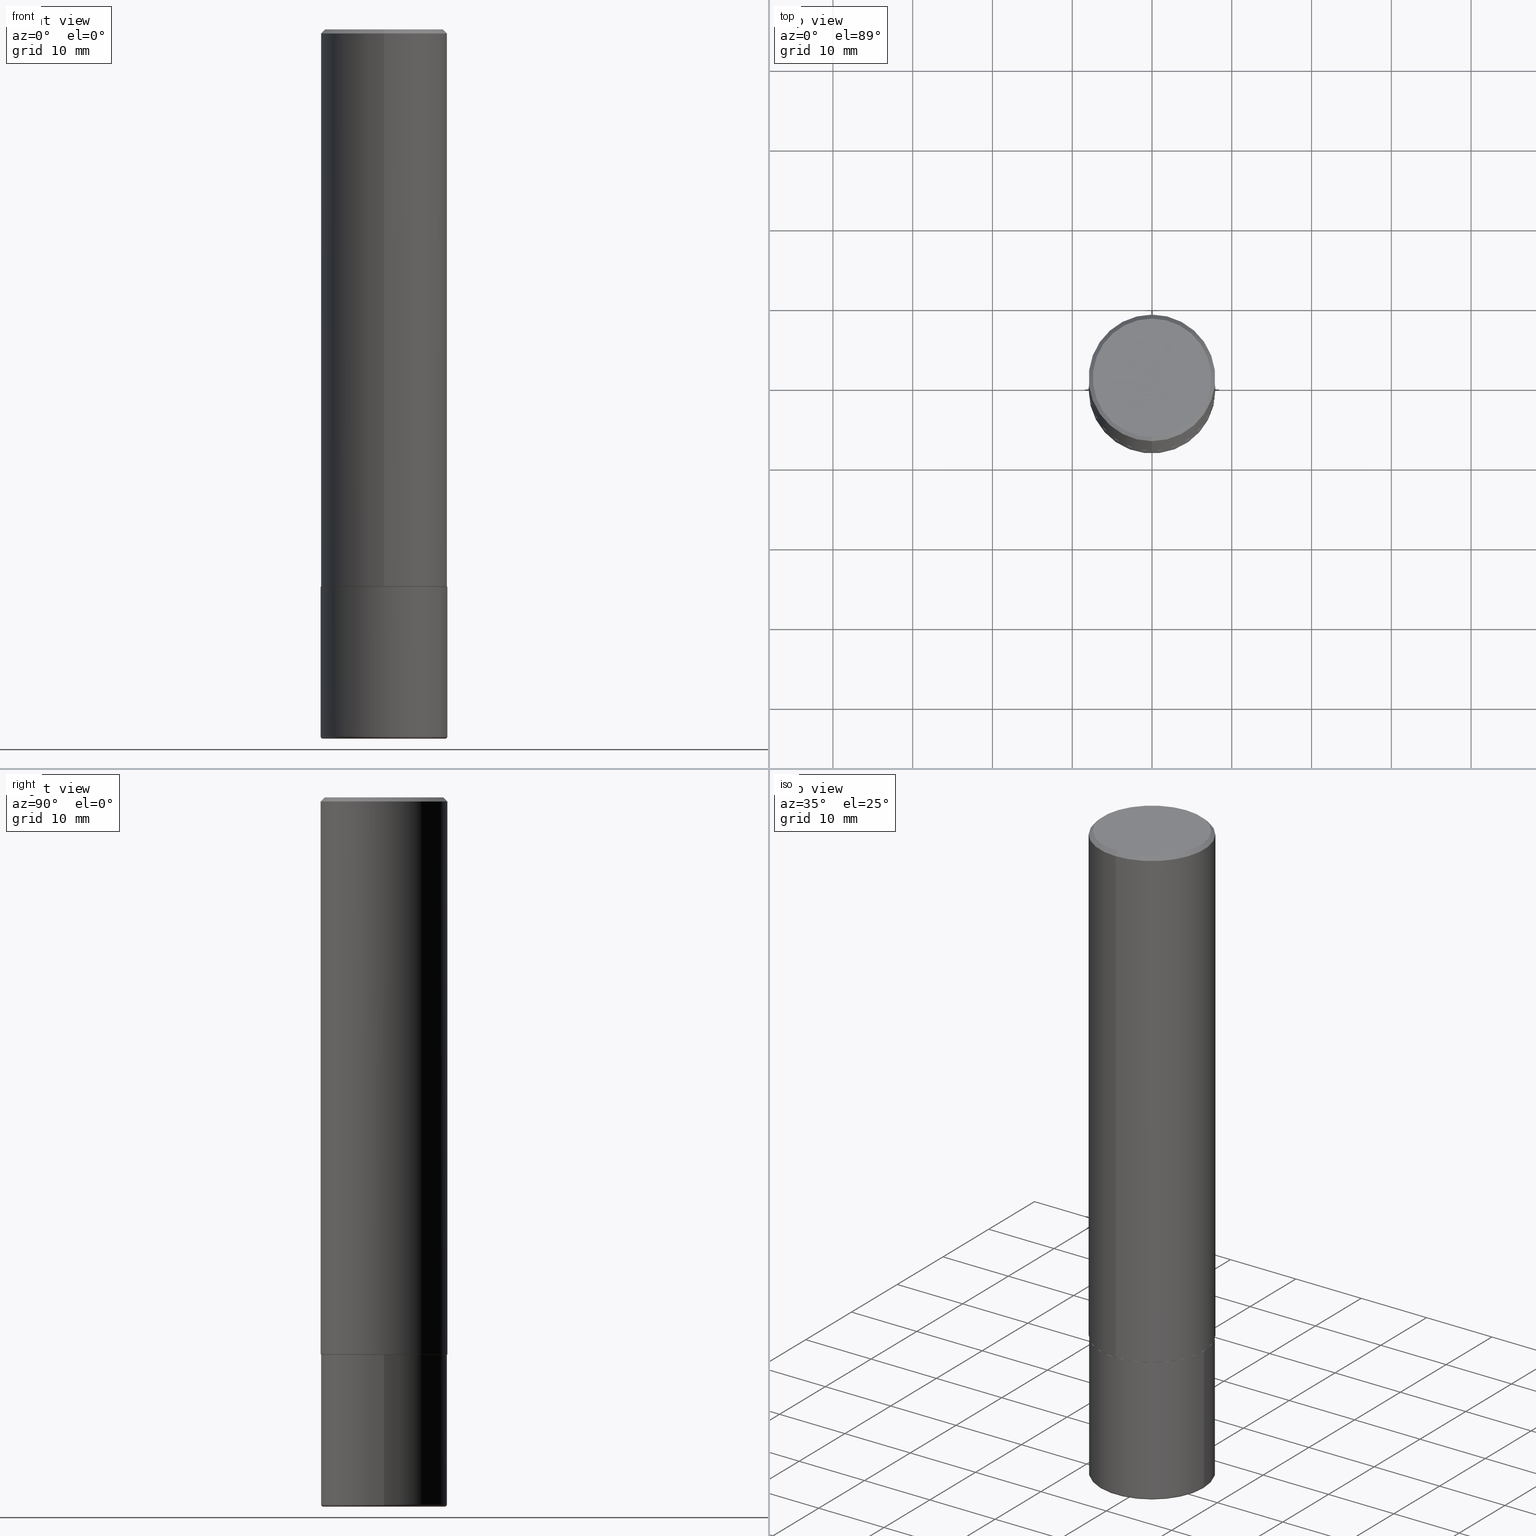
[diagram: canonical four-view strip — front | top / right | iso, engineering-drawing reading convention]
A machine part, canonical four-view strip (front | top / right | iso — engineering-drawing reading convention). The complete STEP part file that produces these views, byte-faithful:
ISO-10303-21;
HEADER;
FILE_DESCRIPTION (( 'STEP AP203' ),
    '1' );
FILE_NAME ('38849.STEP',
    '2024-03-03T16:54:18',
    ( '' ),
    ( '' ),
    'SwSTEP 2.0',
    'SolidWorks 2023',
    '' );
FILE_SCHEMA (( 'CONFIG_CONTROL_DESIGN' ));
ENDSEC;

DATA;
#1 = DIRECTION ( 'NONE',  ( -1.000000000000000000, 6.982962677686265922E-15, -4.876176775795935793E-29 ) ) ;
#2 = ORIENTED_EDGE ( 'NONE', *, *, #255, .F. ) ;
#3 = EDGE_LOOP ( 'NONE', ( #354, #387, #40, #236 ) ) ;
#4 = AXIS2_PLACEMENT_3D ( 'NONE', #25, #20, #144 ) ;
#5 = EDGE_CURVE ( 'NONE', #340, #206, #324, .T. ) ;
#6 = EDGE_LOOP ( 'NONE', ( #283, #205, #413, #298 ) ) ;
#7 = EDGE_LOOP ( 'NONE', ( #189, #127 ) ) ;
#8 = ADVANCED_FACE ( 'NONE', ( #42 ), #159, .T. ) ;
#9 = AXIS2_PLACEMENT_3D ( 'NONE', #278, #123, #218 ) ;
#10 = EDGE_LOOP ( 'NONE', ( #232, #363 ) ) ;
#11 = CARTESIAN_POINT ( 'NONE',  ( 0.3125000000000000000, -2.182175836776958347E-15, 1.523805242436230075E-29 ) ) ;
#12 = DIRECTION ( 'NONE',  ( -2.444797333483953649E-29, 3.492442925969092226E-15, 1.000000000000000000 ) ) ;
#13 = COORDINATED_UNIVERSAL_TIME_OFFSET ( 5, 0, .BEHIND. ) ;
#14 = PERSON_AND_ORGANIZATION_ROLE ( 'creator' ) ;
#15 = EDGE_CURVE ( 'NONE', #374, #193, #53, .T. ) ;
#16 = PERSON_AND_ORGANIZATION ( #329, #162 ) ;
#17 = ORIENTED_EDGE ( 'NONE', *, *, #152, .T. ) ;
#18 = AXIS2_PLACEMENT_3D ( 'NONE', #312, #26, #175 ) ;
#19 = APPROVAL_PERSON_ORGANIZATION ( #111, #399, #214 ) ;
#20 = DIRECTION ( 'NONE',  ( -2.444797333483953649E-29, 3.492442925969092226E-15, 1.000000000000000000 ) ) ;
#21 = APPLICATION_PROTOCOL_DEFINITION ( 'international standard', 'config_control_design', 1994, #101 ) ;
#22 = CARTESIAN_POINT ( 'NONE',  ( 0.000000000000000000, 0.000000000000000000, 0.000000000000000000 ) ) ;
#23 = DIRECTION ( 'NONE',  ( -2.444797333483953649E-29, 3.492442925969092226E-15, 1.000000000000000000 ) ) ;
#24 = DIRECTION ( 'NONE',  ( 2.444797333483953649E-29, -3.492442925969092226E-15, -1.000000000000000000 ) ) ;
#25 = CARTESIAN_POINT ( 'NONE',  ( 6.723192667080871976E-29, -9.604218046415003522E-15, -2.750000000000000000 ) ) ;
#26 = DIRECTION ( 'NONE',  ( 2.444797333483953089E-29, -3.492442925969092620E-15, -1.000000000000000000 ) ) ;
#27 = CONICAL_SURFACE ( 'NONE', #75, 0.3124999999999998890, 0.7853981633974469467 ) ;
#28 = AXIS2_PLACEMENT_3D ( 'NONE', #251, #187, #1 ) ;
#29 = EDGE_CURVE ( 'NONE', #164, #306, #370, .T. ) ;
#30 = AXIS2_PLACEMENT_3D ( 'NONE', #404, #51, #368 ) ;
#31 = ORIENTED_EDGE ( 'NONE', *, *, #152, .F. ) ;
#32 = ADVANCED_FACE ( 'NONE', ( #410 ), #141, .T. ) ;
#33 = ORIENTED_EDGE ( 'NONE', *, *, #57, .T. ) ;
#34 = EDGE_CURVE ( 'NONE', #65, #398, #59, .T. ) ;
#35 = AXIS2_PLACEMENT_3D ( 'NONE', #254, #288, #400 ) ;
#36 = AXIS2_PLACEMENT_3D ( 'NONE', #393, #225, #70 ) ;
#37 = EDGE_LOOP ( 'NONE', ( #92, #403, #373, #302 ) ) ;
#38 = CALENDAR_DATE ( 2024, 3, 3 ) ;
#39 = CC_DESIGN_PERSON_AND_ORGANIZATION_ASSIGNMENT ( #293, #229, ( #290 ) ) ;
#40 = ORIENTED_EDGE ( 'NONE', *, *, #5, .F. ) ;
#41 = CARTESIAN_POINT ( 'NONE',  ( 2.216893335571580419E-15, 0.3114999999999903957, -2.750000000000000888 ) ) ;
#42 = FACE_OUTER_BOUND ( 'NONE', #337, .T. ) ;
#43 = AXIS2_PLACEMENT_3D ( 'NONE', #378, #24, #180 ) ;
#44 = ORIENTED_EDGE ( 'NONE', *, *, #135, .F. ) ;
#45 = DATE_AND_TIME ( #338, #221 ) ;
#46 = CARTESIAN_POINT ( 'NONE',  ( -0.3024999999999999911, -1.003587809688827154E-14, -3.489999999999999769 ) ) ;
#47 = DIRECTION ( 'NONE',  ( -2.445468806185136597E-29, 3.491481338843145583E-15, 1.000000000000000000 ) ) ;
#48 = ORIENTED_EDGE ( 'NONE', *, *, #29, .T. ) ;
#49 = DIRECTION ( 'NONE',  ( -2.444797333483953649E-29, 3.492442925969092226E-15, 1.000000000000000000 ) ) ;
#50 = LINE ( 'NONE', #169, #107 ) ;
#51 = DIRECTION ( 'NONE',  ( -2.444797333483953649E-29, 3.492442925969092226E-15, 1.000000000000000000 ) ) ;
#52 = DIRECTION ( 'NONE',  ( 5.024295867789263036E-15, 0.7071067811867189912, 0.7071067811863760433 ) ) ;
#53 = CIRCLE ( 'NONE', #131, 0.3024999999999999911 ) ;
#54 = ORIENTED_EDGE ( 'NONE', *, *, #388, .T. ) ;
#55 = AXIS2_PLACEMENT_3D ( 'NONE', #112, #49, #369 ) ;
#56 = CARTESIAN_POINT ( 'NONE',  ( 0.3125000000000000000, -1.178374951859560978E-14, -2.750000000000000000 ) ) ;
#57 = EDGE_CURVE ( 'NONE', #130, #164, #50, .T. ) ;
#58 = DIRECTION ( 'NONE',  ( 1.000000000000000000, -6.982962677686267499E-15, 0.000000000000000000 ) ) ;
#59 = CIRCLE ( 'NONE', #386, 0.3125000000000000000 ) ;
#60 = AXIS2_PLACEMENT_3D ( 'NONE', #402, #105, #256 ) ;
#61 = ORIENTED_EDGE ( 'NONE', *, *, #198, .F. ) ;
#62 = ORIENTED_EDGE ( 'NONE', *, *, #388, .F. ) ;
#63 = CIRCLE ( 'NONE', #35, 0.2924999999999997602 ) ;
#64 = CIRCLE ( 'NONE', #36, 0.2924999999999997602 ) ;
#65 = VERTEX_POINT ( 'NONE', #56 ) ;
#66 = DIRECTION ( 'NONE',  ( 6.982962677686265133E-15, 1.000000000000000000, -3.496765431890258103E-15 ) ) ;
#67 = AXIS2_PLACEMENT_3D ( 'NONE', #356, #190, #103 ) ;
#68 = LOCAL_TIME ( 11, 54, 18.00000000000000000, #153 ) ;
#69 = ADVANCED_FACE ( 'NONE', ( #409 ), #384, .T. ) ;
#70 = DIRECTION ( 'NONE',  ( -6.982962677686266711E-15, -1.000000000000000000, 3.492442925969092620E-15 ) ) ;
#71 = VERTEX_POINT ( 'NONE', #389 ) ;
#72 = DIRECTION ( 'NONE',  ( -2.445468806185136597E-29, 3.491481338843145583E-15, 1.000000000000000000 ) ) ;
#73 = DATE_AND_TIME ( #264, #233 ) ;
#74 = CARTESIAN_POINT ( 'NONE',  ( 6.720747869747387921E-29, -9.600725603489034077E-15, -2.749000000000000110 ) ) ;
#75 = AXIS2_PLACEMENT_3D ( 'NONE', #216, #156, #66 ) ;
#76 = ORIENTED_EDGE ( 'NONE', *, *, #168, .T. ) ;
#77 = APPROVAL_STATUS ( 'not_yet_approved' ) ;
#78 = EDGE_CURVE ( 'NONE', #193, #374, #155, .T. ) ;
#79 = DIRECTION ( 'NONE',  ( -6.982962677686265922E-15, -1.000000000000000000, 3.496765431890253764E-15 ) ) ;
#80 = ORIENTED_EDGE ( 'NONE', *, *, #34, .F. ) ;
#81 = DIRECTION ( 'NONE',  ( -6.982962677686265922E-15, -1.000000000000000000, 3.507991003100177457E-15 ) ) ;
#82 = ORIENTED_EDGE ( 'NONE', *, *, #243, .F. ) ;
#83 = DIRECTION ( 'NONE',  ( 1.000000000000000000, -6.982962677686267499E-15, 4.883557194083112901E-29 ) ) ;
#84 = EDGE_LOOP ( 'NONE', ( #82, #328, #114, #62 ) ) ;
#85 = LENGTH_MEASURE_WITH_UNIT ( LENGTH_MEASURE( 0.02539999999999999897 ), #395 );
#86 = DIRECTION ( 'NONE',  ( 1.000000000000000000, -6.982962677686269077E-15, 0.000000000000000000 ) ) ;
#87 = VECTOR ( 'NONE', #133, 39.37007874015748143 ) ;
#88 = VECTOR ( 'NONE', #297, 39.37007874015748143 ) ;
#89 = PRODUCT ( '38849', '38849', '', ( #115 ) ) ;
#90 = PERSON_AND_ORGANIZATION_ROLE ( 'design_supplier' ) ;
#91 = LINE ( 'NONE', #365, #208 ) ;
#92 = ORIENTED_EDGE ( 'NONE', *, *, #57, .F. ) ;
#93 = CC_DESIGN_PERSON_AND_ORGANIZATION_ASSIGNMENT ( #146, #352, ( #361 ) ) ;
#94 = CIRCLE ( 'NONE', #99, 0.3125000000000000000 ) ;
#95 = FACE_OUTER_BOUND ( 'NONE', #84, .T. ) ;
#96 = ADVANCED_FACE ( 'NONE', ( #95 ), #355, .T. ) ;
#97 = CALENDAR_DATE ( 2024, 3, 3 ) ;
#98 = EDGE_LOOP ( 'NONE', ( #31, #401, #359, #48 ) ) ;
#99 = AXIS2_PLACEMENT_3D ( 'NONE', #339, #47, #86 ) ;
#100 = DIMENSIONAL_EXPONENTS ( 1.000000000000000000, 0.000000000000000000, 0.000000000000000000, 0.000000000000000000, 0.000000000000000000, 0.000000000000000000, 0.000000000000000000 ) ;
#101 = APPLICATION_CONTEXT ( 'configuration controlled 3d designs of mechanical parts and assemblies' ) ;
#102 = ORIENTED_EDGE ( 'NONE', *, *, #397, .T. ) ;
#103 = DIRECTION ( 'NONE',  ( 1.000000000000000000, -6.982962677686267499E-15, 4.883557194083112901E-29 ) ) ;
#104 = FACE_OUTER_BOUND ( 'NONE', #10, .T. ) ;
#105 = DIRECTION ( 'NONE',  ( -2.445468806185136597E-29, 3.491481338843145583E-15, 1.000000000000000000 ) ) ;
#106 = EDGE_LOOP ( 'NONE', ( #366, #17, #167, #231 ) ) ;
#107 = VECTOR ( 'NONE', #307, 39.37007874015748143 ) ;
#108 = AXIS2_PLACEMENT_3D ( 'NONE', #22, #300, #276 ) ;
#109 = CARTESIAN_POINT ( 'NONE',  ( -0.3124999999999998890, -9.964823823312263034E-15, -3.489999999999999769 ) ) ;
#110 = CARTESIAN_POINT ( 'NONE',  ( 2.112346210000094260E-15, 0.2924999999999997602, -9.401565542997115154E-16 ) ) ;
#111 = PERSON_AND_ORGANIZATION ( #329, #162 ) ;
#112 = CARTESIAN_POINT ( 'NONE',  ( 6.720747869747387921E-29, -9.600725603489034077E-15, -2.749000000000000110 ) ) ;
#113 = CC_DESIGN_DATE_AND_TIME_ASSIGNMENT ( #45, #269, ( #376 ) ) ;
#114 = ORIENTED_EDGE ( 'NONE', *, *, #287, .T. ) ;
#115 = MECHANICAL_CONTEXT ( 'NONE', #101, 'mechanical' ) ;
#116 = AXIS2_PLACEMENT_3D ( 'NONE', #279, #165, #179 ) ;
#117 = CARTESIAN_POINT ( 'NONE',  ( 6.725039217009124520E-29, -9.601573681818649859E-15, -2.750000000000000000 ) ) ;
#118 = SHAPE_DEFINITION_REPRESENTATION ( #204, #174 ) ;
#119 = CARTESIAN_POINT ( 'NONE',  ( 8.559140821647976968E-29, -1.222018468595100619E-14, -3.499999999999999112 ) ) ;
#120 = CARTESIAN_POINT ( 'NONE',  ( 0.000000000000000000, 0.000000000000000000, 0.000000000000000000 ) ) ;
#121 = AXIS2_PLACEMENT_3D ( 'NONE', #74, #372, #79 ) ;
#122 = CC_DESIGN_APPROVAL ( #412, ( #376 ) ) ;
#123 = DIRECTION ( 'NONE',  ( -6.982962677686266711E-15, -1.000000000000000000, 3.491481338843145583E-15 ) ) ;
#124 = EDGE_CURVE ( 'NONE', #407, #268, #188, .T. ) ;
#125 = MANIFOLD_SOLID_BREP ( 'Body-Move/Copy2[2]', #415 ) ;
#126 = CIRCLE ( 'NONE', #60, 0.3125000000000000000 ) ;
#127 = ORIENTED_EDGE ( 'NONE', *, *, #128, .T. ) ;
#128 = EDGE_CURVE ( 'NONE', #398, #65, #94, .T. ) ;
#129 = EDGE_LOOP ( 'NONE', ( #333, #138, #80, #235 ) ) ;
#130 = VERTEX_POINT ( 'NONE', #382 ) ;
#131 = AXIS2_PLACEMENT_3D ( 'NONE', #119, #349, #182 ) ;
#132 = AXIS2_PLACEMENT_3D ( 'NONE', #154, #228, #58 ) ;
#133 = DIRECTION ( 'NONE',  ( -2.445468806185136877E-29, 3.491481338843145188E-15, 1.000000000000000000 ) ) ;
#134 = ORIENTED_EDGE ( 'NONE', *, *, #184, .T. ) ;
#135 = EDGE_CURVE ( 'NONE', #71, #306, #272, .T. ) ;
#136 = DIRECTION ( 'NONE',  ( -2.444797333483953089E-29, 3.492442925969092620E-15, 1.000000000000000000 ) ) ;
#137 = PERSON_AND_ORGANIZATION ( #329, #162 ) ;
#138 = ORIENTED_EDGE ( 'NONE', *, *, #147, .T. ) ;
#139 = CARTESIAN_POINT ( 'NONE',  ( 4.889594666967924290E-31, -6.984885851938207279E-17, -0.02000000000000006981 ) ) ;
#140 = ADVANCED_FACE ( 'NONE', ( #379 ), #308, .T. ) ;
#141 = CONICAL_SURFACE ( 'NONE', #4, 0.3114999999999999991, 0.7853981633976873100 ) ;
#142 = CC_DESIGN_APPROVAL ( #399, ( #361 ) ) ;
#143 = DIRECTION ( 'NONE',  ( -2.445468806185136597E-29, 3.491481338843145583E-15, 1.000000000000000000 ) ) ;
#144 = DIRECTION ( 'NONE',  ( -6.982962677686265922E-15, -1.000000000000000000, 3.507991003100177457E-15 ) ) ;
#145 = VECTOR ( 'NONE', #346, 39.37007874015748143 ) ;
#146 = PERSON_AND_ORGANIZATION ( #329, #162 ) ;
#147 = EDGE_CURVE ( 'NONE', #206, #398, #245, .T. ) ;
#148 = SECURITY_CLASSIFICATION_LEVEL ( 'unclassified' ) ;
#149 = CYLINDRICAL_SURFACE ( 'NONE', #161, 0.3125000000000000555 ) ;
#150 = PLANE ( 'NONE',  #18 ) ;
#151 = CIRCLE ( 'NONE', #121, 0.3125000000000002776 ) ;
#152 = EDGE_CURVE ( 'NONE', #353, #306, #91, .T. ) ;
#153 = COORDINATED_UNIVERSAL_TIME_OFFSET ( 5, 0, .BEHIND. ) ;
#154 = CARTESIAN_POINT ( 'NONE',  ( 8.559140821647976968E-29, -1.222018468595100619E-14, -3.499999999999999112 ) ) ;
#155 = CIRCLE ( 'NONE', #132, 0.3024999999999999911 ) ;
#156 = DIRECTION ( 'NONE',  ( 2.444797333483953649E-29, -3.492442925969092226E-15, -1.000000000000000000 ) ) ;
#157 = CARTESIAN_POINT ( 'NONE',  ( 2.182175836776957558E-15, 0.3124999999999998335, -0.02000000000000116268 ) ) ;
#158 = CARTESIAN_POINT ( 'NONE',  ( 6.723192667080871976E-29, -9.604218046415003522E-15, -2.750000000000000000 ) ) ;
#159 = CYLINDRICAL_SURFACE ( 'NONE', #344, 0.3125000000000000000 ) ;
#160 = EDGE_CURVE ( 'NONE', #407, #71, #348, .T. ) ;
#161 = AXIS2_PLACEMENT_3D ( 'NONE', #120, #350, #316 ) ;
#162 = ORGANIZATION ( 'UNSPECIFIED', 'UNSPECIFIED', '' ) ;
#163 = FACE_OUTER_BOUND ( 'NONE', #262, .T. ) ;
#164 = VERTEX_POINT ( 'NONE', #317 ) ;
#165 = DIRECTION ( 'NONE',  ( -2.445468806185136597E-29, 3.491481338843145583E-15, 1.000000000000000000 ) ) ;
#166 = DIRECTION ( 'NONE',  ( -6.982962677686265922E-15, -1.000000000000000000, 3.507991003100177457E-15 ) ) ;
#167 = ORIENTED_EDGE ( 'NONE', *, *, #255, .T. ) ;
#168 = EDGE_CURVE ( 'NONE', #357, #353, #63, .T. ) ;
#169 = CARTESIAN_POINT ( 'NONE',  ( 2.220446049250313081E-15, 0.3125000000000000555, -1.091388414365341542E-15 ) ) ;
#170 = FACE_OUTER_BOUND ( 'NONE', #37, .T. ) ;
#171 = AXIS2_PLACEMENT_3D ( 'NONE', #46, #240, #313 ) ;
#172 = CARTESIAN_POINT ( 'NONE',  ( 6.723192667080871976E-29, -9.604218046415003522E-15, -2.750000000000000000 ) ) ;
#173 = LOCAL_TIME ( 11, 54, 18.00000000000000000, #347 ) ;
#174 = ADVANCED_BREP_SHAPE_REPRESENTATION ( '38849', ( #263, #125, #108 ), #252 ) ;
#175 = DIRECTION ( 'NONE',  ( 6.982962677686265922E-15, 1.000000000000000000, -3.492442925969092620E-15 ) ) ;
#176 = CARTESIAN_POINT ( 'NONE',  ( 2.213340621892779126E-15, 0.3114999999999903957, -2.750000000000000888 ) ) ;
#177 = CARTESIAN_POINT ( 'NONE',  ( 4.889594666967924290E-31, -6.984885851938207279E-17, -0.02000000000000006981 ) ) ;
#178 = APPROVAL_DATE_TIME ( #411, #399 ) ;
#179 = DIRECTION ( 'NONE',  ( 1.000000000000000000, -6.982962677686266711E-15, 4.876176775795936353E-29 ) ) ;
#180 = DIRECTION ( 'NONE',  ( 6.982962677686265133E-15, 1.000000000000000000, -3.496765431890258103E-15 ) ) ;
#181 = CALENDAR_DATE ( 2024, 3, 3 ) ;
#182 = DIRECTION ( 'NONE',  ( 1.000000000000000000, -6.982962677686267499E-15, 0.000000000000000000 ) ) ;
#183 = LINE ( 'NONE', #176, #270 ) ;
#184 = EDGE_CURVE ( 'NONE', #71, #130, #394, .T. ) ;
#185 = PLANE ( 'NONE',  #250 ) ;
#186 = ADVANCED_FACE ( 'NONE', ( #192 ), #150, .F. ) ;
#187 = DIRECTION ( 'NONE',  ( 2.438088387897960049E-29, -3.491481338843145188E-15, -1.000000000000000000 ) ) ;
#188 = CIRCLE ( 'NONE', #196, 0.3114999999999999991 ) ;
#189 = ORIENTED_EDGE ( 'NONE', *, *, #34, .T. ) ;
#190 = DIRECTION ( 'NONE',  ( -2.445468806185136597E-29, 3.491481338843145583E-15, 1.000000000000000000 ) ) ;
#191 = CARTESIAN_POINT ( 'NONE',  ( -2.175192874099204491E-15, -0.3115000000000096581, -2.749999999999998668 ) ) ;
#192 = FACE_OUTER_BOUND ( 'NONE', #320, .T. ) ;
#193 = VERTEX_POINT ( 'NONE', #315 ) ;
#194 = ADVANCED_FACE ( 'NONE', ( #170 ), #331, .T. ) ;
#195 = APPROVAL_STATUS ( 'not_yet_approved' ) ;
#196 = AXIS2_PLACEMENT_3D ( 'NONE', #172, #23, #166 ) ;
#197 = CARTESIAN_POINT ( 'NONE',  ( -0.3125000000000000000, -8.672975727940299906E-15, -2.750000000000000000 ) ) ;
#198 = EDGE_CURVE ( 'NONE', #268, #130, #183, .T. ) ;
#199 = DIRECTION ( 'NONE',  ( -6.982962677686265922E-15, -1.000000000000000000, 3.507991003100177457E-15 ) ) ;
#200 = DIRECTION ( 'NONE',  ( -6.982962677686265922E-15, -1.000000000000000000, 3.492442925969092620E-15 ) ) ;
#201 = DIRECTION ( 'NONE',  ( 1.000000000000000000, -6.982962677686269077E-15, 0.000000000000000000 ) ) ;
#202 = CARTESIAN_POINT ( 'NONE',  ( 6.723192667080871976E-29, -9.604218046415003522E-15, -2.750000000000000000 ) ) ;
#203 = AXIS2_PLACEMENT_3D ( 'NONE', #296, #136, #200 ) ;
#204 = PRODUCT_DEFINITION_SHAPE ( 'NONE', 'NONE',  #376 ) ;
#205 = ORIENTED_EDGE ( 'NONE', *, *, #198, .T. ) ;
#206 = VERTEX_POINT ( 'NONE', #109 ) ;
#207 = UNCERTAINTY_MEASURE_WITH_UNIT (LENGTH_MEASURE( 1.000000000000000082E-05 ), #285, 'distance_accuracy_value', 'NONE');
#208 = VECTOR ( 'NONE', #274, 39.37007874015748143 ) ;
#209 = LOCAL_TIME ( 11, 54, 18.00000000000000000, #390 ) ;
#210 = ADVANCED_FACE ( 'NONE', ( #249 ), #185, .T. ) ;
#211 = FACE_OUTER_BOUND ( 'NONE', #7, .T. ) ;
#212 = CARTESIAN_POINT ( 'NONE',  ( 0.000000000000000000, 0.000000000000000000, 0.000000000000000000 ) ) ;
#213 = VECTOR ( 'NONE', #248, 39.37007874015748143 ) ;
#214 = APPROVAL_ROLE ( '' ) ;
#215 = APPROVAL_DATE_TIME ( #362, #310 ) ;
#216 = CARTESIAN_POINT ( 'NONE',  ( 4.889594666967924290E-31, -6.984885851938207279E-17, -0.02000000000000006981 ) ) ;
#217 =( NAMED_UNIT ( * ) PLANE_ANGLE_UNIT ( ) SI_UNIT ( $, .RADIAN. ) );
#218 = DIRECTION ( 'NONE',  ( 1.000000000000000000, -6.982962677686284854E-15, 0.000000000000000000 ) ) ;
#219 = CLOSED_SHELL ( 'NONE', ( #69, #140, #417, #8, #96, #210 ) ) ;
#220 = CONICAL_SURFACE ( 'NONE', #43, 0.3124999999999998890, 0.7853981633974469467 ) ;
#221 = LOCAL_TIME ( 11, 54, 18.00000000000000000, #266 ) ;
#222 = EDGE_CURVE ( 'NONE', #130, #71, #151, .T. ) ;
#223 = DIRECTION ( 'NONE',  ( -6.982962677686265133E-15, -1.000000000000000000, 3.496765431890258103E-15 ) ) ;
#224 = AXIS2_PLACEMENT_3D ( 'NONE', #230, #72, #201 ) ;
#225 = DIRECTION ( 'NONE',  ( -2.444797333483953649E-29, 3.492442925969092226E-15, 1.000000000000000000 ) ) ;
#226 = CIRCLE ( 'NONE', #391, 0.3114999999999999991 ) ;
#227 = ORIENTED_EDGE ( 'NONE', *, *, #222, .F. ) ;
#228 = DIRECTION ( 'NONE',  ( -2.445468806185136597E-29, 3.491481338843145583E-15, 1.000000000000000000 ) ) ;
#229 = PERSON_AND_ORGANIZATION_ROLE ( 'classification_officer' ) ;
#230 = CARTESIAN_POINT ( 'NONE',  ( 8.534686133586126543E-29, -1.218526987256257612E-14, -3.489999999999999769 ) ) ;
#231 = ORIENTED_EDGE ( 'NONE', *, *, #406, .F. ) ;
#232 = ORIENTED_EDGE ( 'NONE', *, *, #124, .F. ) ;
#233 = LOCAL_TIME ( 11, 54, 18.00000000000000000, #13 ) ;
#234 = ORIENTED_EDGE ( 'NONE', *, *, #282, .T. ) ;
#235 = ORIENTED_EDGE ( 'NONE', *, *, #282, .F. ) ;
#236 = ORIENTED_EDGE ( 'NONE', *, *, #287, .F. ) ;
#237 =( NAMED_UNIT ( * ) SI_UNIT ( $, .STERADIAN. ) SOLID_ANGLE_UNIT ( ) );
#238 = DIRECTION ( 'NONE',  ( -2.444797333483953649E-29, 3.492442925969092620E-15, 1.000000000000000000 ) ) ;
#239 = DIRECTION ( 'NONE',  ( 2.438088387897960049E-29, -3.491481338843145188E-15, -1.000000000000000000 ) ) ;
#240 = DIRECTION ( 'NONE',  ( 7.105427357601001859E-15, 1.000000000000000000, -3.491481338843145583E-15 ) ) ;
#241 = CIRCLE ( 'NONE', #418, 0.3124999999999998890 ) ;
#242 = APPROVAL_PERSON_ORGANIZATION ( #319, #310, #325 ) ;
#243 = EDGE_CURVE ( 'NONE', #193, #206, #360, .T. ) ;
#244 = DIRECTION ( 'NONE',  ( -2.445468806185136597E-29, 3.491481338843145583E-15, 1.000000000000000000 ) ) ;
#245 = LINE ( 'NONE', #414, #213 ) ;
#246 = DESIGN_CONTEXT ( 'detailed design', #265, 'design' ) ;
#247 = DIRECTION ( 'NONE',  ( -2.444797333483953649E-29, 3.492442925969092226E-15, 1.000000000000000000 ) ) ;
#248 = DIRECTION ( 'NONE',  ( -2.445468806185136877E-29, 3.491481338843145188E-15, 1.000000000000000000 ) ) ;
#249 = FACE_OUTER_BOUND ( 'NONE', #377, .T. ) ;
#250 = AXIS2_PLACEMENT_3D ( 'NONE', #383, #239, #367 ) ;
#251 = CARTESIAN_POINT ( 'NONE',  ( 6.725039217009124520E-29, -9.601573681818649859E-15, -2.750000000000000000 ) ) ;
#252 =( GEOMETRIC_REPRESENTATION_CONTEXT ( 3 ) GLOBAL_UNCERTAINTY_ASSIGNED_CONTEXT ( ( #207 ) ) GLOBAL_UNIT_ASSIGNED_CONTEXT ( ( #285, #217, #237 ) ) REPRESENTATION_CONTEXT ( 'NONE', 'WORKASPACE' ) );
#253 = FACE_OUTER_BOUND ( 'NONE', #98, .T. ) ;
#254 = CARTESIAN_POINT ( 'NONE',  ( -1.989649451711856503E-45, 2.842254880443227287E-31, 8.138300154624720232E-17 ) ) ;
#255 = EDGE_CURVE ( 'NONE', #306, #164, #241, .T. ) ;
#256 = DIRECTION ( 'NONE',  ( 1.000000000000000000, -6.982962677686269077E-15, 0.000000000000000000 ) ) ;
#257 = ORIENTED_EDGE ( 'NONE', *, *, #277, .T. ) ;
#258 = DIRECTION ( 'NONE',  ( -2.444797333483953649E-29, 3.492442925969092226E-15, 1.000000000000000000 ) ) ;
#259 = CC_DESIGN_PERSON_AND_ORGANIZATION_ASSIGNMENT ( #281, #90, ( #361 ) ) ;
#260 = CIRCLE ( 'NONE', #9, 0.009999999999999790307 ) ;
#261 = ORIENTED_EDGE ( 'NONE', *, *, #160, .T. ) ;
#262 = EDGE_LOOP ( 'NONE', ( #61, #257, #261, #227 ) ) ;
#263 = MANIFOLD_SOLID_BREP ( 'Body-Move/Copy2[1]', #219 ) ;
#264 = CALENDAR_DATE ( 2024, 3, 3 ) ;
#265 = APPLICATION_CONTEXT ( 'configuration controlled 3d designs of mechanical parts and assemblies' ) ;
#266 = COORDINATED_UNIVERSAL_TIME_OFFSET ( 5, 0, .BEHIND. ) ;
#267 = CC_DESIGN_PERSON_AND_ORGANIZATION_ASSIGNMENT ( #16, #336, ( #89 ) ) ;
#268 = VERTEX_POINT ( 'NONE', #41 ) ;
#269 = DATE_TIME_ROLE ( 'creation_date' ) ;
#270 = VECTOR ( 'NONE', #52, 39.37007874015748143 ) ;
#271 = CC_DESIGN_APPROVAL ( #310, ( #290 ) ) ;
#272 = LINE ( 'NONE', #408, #381 ) ;
#273 = CARTESIAN_POINT ( 'NONE',  ( 0.3124999999999998890, -1.436744570933953446E-14, -3.489999999999999769 ) ) ;
#274 = DIRECTION ( 'NONE',  ( -4.851104656540957175E-15, -0.7071067811865490160, -0.7071067811865460184 ) ) ;
#275 = PLANE ( 'NONE',  #28 ) ;
#276 = DIRECTION ( 'NONE',  ( 1.000000000000000000, 0.000000000000000000, 0.000000000000000000 ) ) ;
#277 = EDGE_CURVE ( 'NONE', #268, #407, #226, .T. ) ;
#278 = CARTESIAN_POINT ( 'NONE',  ( 0.3024999999999999911, -1.429761608256267116E-14, -3.489999999999999769 ) ) ;
#279 = CARTESIAN_POINT ( 'NONE',  ( 0.000000000000000000, 0.000000000000000000, 0.000000000000000000 ) ) ;
#280 = CARTESIAN_POINT ( 'NONE',  ( -2.175192874099204491E-15, -0.3115000000000096581, -2.749999999999998668 ) ) ;
#281 = PERSON_AND_ORGANIZATION ( #329, #162 ) ;
#282 = EDGE_CURVE ( 'NONE', #340, #65, #332, .T. ) ;
#283 = ORIENTED_EDGE ( 'NONE', *, *, #124, .T. ) ;
#284 = CONICAL_SURFACE ( 'NONE', #314, 0.3114999999999999991, 0.7853981633976873100 ) ;
#285 =( CONVERSION_BASED_UNIT ( 'INCH', #85 ) LENGTH_UNIT ( ) NAMED_UNIT ( #100 ) );
#286 = DATE_AND_TIME ( #97, #68 ) ;
#287 = EDGE_CURVE ( 'NONE', #374, #340, #260, .T. ) ;
#288 = DIRECTION ( 'NONE',  ( -2.444797333483953649E-29, 3.492442925969092226E-15, 1.000000000000000000 ) ) ;
#289 = CARTESIAN_POINT ( 'NONE',  ( -2.143905624303602036E-15, -0.3124999999999999445, -0.01999999999999897693 ) ) ;
#290 = SECURITY_CLASSIFICATION ( '', '', #148 ) ;
#291 = ADVANCED_FACE ( 'NONE', ( #318 ), #149, .T. ) ;
#292 = ORIENTED_EDGE ( 'NONE', *, *, #128, .F. ) ;
#293 = PERSON_AND_ORGANIZATION ( #329, #162 ) ;
#294 = DATE_TIME_ROLE ( 'classification_date' ) ;
#295 = CC_DESIGN_DATE_AND_TIME_ASSIGNMENT ( #286, #294, ( #290 ) ) ;
#296 = CARTESIAN_POINT ( 'NONE',  ( 6.723192667080871976E-29, -9.604218046415003522E-15, -2.750000000000000000 ) ) ;
#297 = DIRECTION ( 'NONE',  ( 4.937700262164540942E-15, 0.7071067811865441310, -0.7071067811865509034 ) ) ;
#298 = ORIENTED_EDGE ( 'NONE', *, *, #160, .F. ) ;
#299 = EDGE_LOOP ( 'NONE', ( #134, #33, #2, #44 ) ) ;
#300 = DIRECTION ( 'NONE',  ( 0.000000000000000000, 0.000000000000000000, 1.000000000000000000 ) ) ;
#301 = PLANE ( 'NONE',  #203 ) ;
#302 = ORIENTED_EDGE ( 'NONE', *, *, #29, .F. ) ;
#303 = APPROVAL_DATE_TIME ( #73, #412 ) ;
#304 = ADVANCED_FACE ( 'NONE', ( #416 ), #220, .T. ) ;
#305 = PERSON_AND_ORGANIZATION ( #329, #162 ) ;
#306 = VERTEX_POINT ( 'NONE', #289 ) ;
#307 = DIRECTION ( 'NONE',  ( -2.444797333483953649E-29, 3.492442925969092620E-15, 1.000000000000000000 ) ) ;
#308 = TOROIDAL_SURFACE ( 'NONE', #67, 0.3024999999999999911, 0.009999999999999807654 ) ;
#309 = DIRECTION ( 'NONE',  ( 1.000000000000000000, -6.982962677686266711E-15, 4.876176775795936353E-29 ) ) ;
#310 = APPROVAL ( #195, 'UNSPECIFIED' ) ;
#311 = DIRECTION ( 'NONE',  ( -6.982962677686265133E-15, -1.000000000000000000, 3.496765431890258103E-15 ) ) ;
#312 = CARTESIAN_POINT ( 'NONE',  ( 2.042516583223231356E-15, 0.2924999999999997602, -9.808480550728350426E-16 ) ) ;
#313 = DIRECTION ( 'NONE',  ( -1.000000000000000000, 7.105427357601074434E-15, 0.000000000000000000 ) ) ;
#314 = AXIS2_PLACEMENT_3D ( 'NONE', #202, #364, #81 ) ;
#315 = CARTESIAN_POINT ( 'NONE',  ( -0.3024999999999999911, -1.001780836679448390E-14, -3.499999999999999112 ) ) ;
#316 = DIRECTION ( 'NONE',  ( -6.982962677686266711E-15, -1.000000000000000000, 3.492442925969092226E-15 ) ) ;
#317 = CARTESIAN_POINT ( 'NONE',  ( 2.182175836776957558E-15, 0.3124999999999998335, -0.02000000000000116268 ) ) ;
#318 = FACE_OUTER_BOUND ( 'NONE', #299, .T. ) ;
#319 = PERSON_AND_ORGANIZATION ( #329, #162 ) ;
#320 = EDGE_LOOP ( 'NONE', ( #76, #102 ) ) ;
#321 = AXIS2_PLACEMENT_3D ( 'NONE', #330, #326, #83 ) ;
#322 = CC_DESIGN_SECURITY_CLASSIFICATION ( #290, ( #361 ) ) ;
#323 = ORIENTED_EDGE ( 'NONE', *, *, #15, .F. ) ;
#324 = CIRCLE ( 'NONE', #224, 0.3125000000000000000 ) ;
#325 = APPROVAL_ROLE ( '' ) ;
#326 = DIRECTION ( 'NONE',  ( -2.445468806185136597E-29, 3.491481338843145583E-15, 1.000000000000000000 ) ) ;
#327 = LINE ( 'NONE', #157, #88 ) ;
#328 = ORIENTED_EDGE ( 'NONE', *, *, #78, .T. ) ;
#329 = PERSON ( 'UNSPECIFIED', 'UNSPECIFIED', 'UNSPECIFIED', ('UNSPECIFIED'), ('UNSPECIFIED'), ('UNSPECIFIED') ) ;
#330 = CARTESIAN_POINT ( 'NONE',  ( 8.534686133586126543E-29, -1.218526987256257612E-14, -3.489999999999999769 ) ) ;
#331 = CYLINDRICAL_SURFACE ( 'NONE', #30, 0.3125000000000000555 ) ;
#332 = LINE ( 'NONE', #11, #87 ) ;
#333 = ORIENTED_EDGE ( 'NONE', *, *, #5, .T. ) ;
#334 = APPROVAL_ROLE ( '' ) ;
#335 = ORIENTED_EDGE ( 'NONE', *, *, #147, .F. ) ;
#336 = PERSON_AND_ORGANIZATION_ROLE ( 'design_owner' ) ;
#337 = EDGE_LOOP ( 'NONE', ( #335, #54, #234, #292 ) ) ;
#338 = CALENDAR_DATE ( 2024, 3, 3 ) ;
#339 = CARTESIAN_POINT ( 'NONE',  ( 6.725039217009124520E-29, -9.601573681818649859E-15, -2.750000000000000000 ) ) ;
#340 = VERTEX_POINT ( 'NONE', #273 ) ;
#341 = CARTESIAN_POINT ( 'NONE',  ( 0.3024999999999999911, -1.433253089595110124E-14, -3.499999999999999112 ) ) ;
#342 = DIRECTION ( 'NONE',  ( 1.000000000000000000, -6.982962677686269077E-15, 0.000000000000000000 ) ) ;
#343 = CC_DESIGN_PERSON_AND_ORGANIZATION_ASSIGNMENT ( #137, #14, ( #376 ) ) ;
#344 = AXIS2_PLACEMENT_3D ( 'NONE', #212, #143, #309 ) ;
#345 = AXIS2_PLACEMENT_3D ( 'NONE', #177, #247, #311 ) ;
#346 = DIRECTION ( 'NONE',  ( -4.937700262165728178E-15, -0.7071067811867141062, 0.7071067811863809283 ) ) ;
#347 = COORDINATED_UNIVERSAL_TIME_OFFSET ( 5, 0, .BEHIND. ) ;
#348 = LINE ( 'NONE', #191, #145 ) ;
#349 = DIRECTION ( 'NONE',  ( -2.445468806185136597E-29, 3.491481338843145583E-15, 1.000000000000000000 ) ) ;
#350 = DIRECTION ( 'NONE',  ( -2.444797333483953649E-29, 3.492442925969092226E-15, 1.000000000000000000 ) ) ;
#351 = ADVANCED_FACE ( 'NONE', ( #253 ), #27, .T. ) ;
#352 = PERSON_AND_ORGANIZATION_ROLE ( 'creator' ) ;
#353 = VERTEX_POINT ( 'NONE', #405 ) ;
#354 = ORIENTED_EDGE ( 'NONE', *, *, #15, .T. ) ;
#355 = TOROIDAL_SURFACE ( 'NONE', #321, 0.3024999999999999911, 0.009999999999999807654 ) ;
#356 = CARTESIAN_POINT ( 'NONE',  ( 8.534686133586126543E-29, -1.218526987256257612E-14, -3.489999999999999769 ) ) ;
#357 = VERTEX_POINT ( 'NONE', #110 ) ;
#358 = ADVANCED_FACE ( 'NONE', ( #163 ), #284, .T. ) ;
#359 = ORIENTED_EDGE ( 'NONE', *, *, #406, .T. ) ;
#360 = CIRCLE ( 'NONE', #171, 0.009999999999999790307 ) ;
#361 = PRODUCT_DEFINITION_FORMATION_WITH_SPECIFIED_SOURCE ( 'ANY', '', #89, .NOT_KNOWN. ) ;
#362 = DATE_AND_TIME ( #38, #209 ) ;
#363 = ORIENTED_EDGE ( 'NONE', *, *, #277, .F. ) ;
#364 = DIRECTION ( 'NONE',  ( -2.444797333483953649E-29, 3.492442925969092226E-15, 1.000000000000000000 ) ) ;
#365 = CARTESIAN_POINT ( 'NONE',  ( -2.143905624303602036E-15, -0.3124999999999999445, -0.01999999999999897693 ) ) ;
#366 = ORIENTED_EDGE ( 'NONE', *, *, #397, .F. ) ;
#367 = DIRECTION ( 'NONE',  ( -1.000000000000000000, 6.982962677686265922E-15, -4.876176775795935793E-29 ) ) ;
#368 = DIRECTION ( 'NONE',  ( -6.982962677686266711E-15, -1.000000000000000000, 3.492442925969092226E-15 ) ) ;
#369 = DIRECTION ( 'NONE',  ( -6.982962677686265922E-15, -1.000000000000000000, 3.496765431890253764E-15 ) ) ;
#370 = CIRCLE ( 'NONE', #345, 0.3124999999999998890 ) ;
#371 = ORIENTED_EDGE ( 'NONE', *, *, #78, .F. ) ;
#372 = DIRECTION ( 'NONE',  ( -2.444797333483953649E-29, 3.492442925969092226E-15, 1.000000000000000000 ) ) ;
#373 = ORIENTED_EDGE ( 'NONE', *, *, #135, .T. ) ;
#374 = VERTEX_POINT ( 'NONE', #341 ) ;
#375 = APPROVAL_STATUS ( 'not_yet_approved' ) ;
#376 = PRODUCT_DEFINITION ( 'UNKNOWN', '', #361, #246 ) ;
#377 = EDGE_LOOP ( 'NONE', ( #323, #371 ) ) ;
#378 = CARTESIAN_POINT ( 'NONE',  ( 4.889594666967924290E-31, -6.984885851938207279E-17, -0.02000000000000006981 ) ) ;
#379 = FACE_OUTER_BOUND ( 'NONE', #3, .T. ) ;
#380 = APPLICATION_PROTOCOL_DEFINITION ( 'international standard', 'config_control_design', 1994, #265 ) ;
#381 = VECTOR ( 'NONE', #238, 39.37007874015748143 ) ;
#382 = CARTESIAN_POINT ( 'NONE',  ( 2.220446049250347791E-15, 0.3124999999999906741, -2.749000000000000998 ) ) ;
#383 = CARTESIAN_POINT ( 'NONE',  ( 1.297351265854343644E-28, -5.898552965075025237E-15, -3.499999999999999112 ) ) ;
#384 = CYLINDRICAL_SURFACE ( 'NONE', #116, 0.3125000000000000000 ) ;
#385 = ADVANCED_FACE ( 'NONE', ( #104 ), #301, .F. ) ;
#386 = AXIS2_PLACEMENT_3D ( 'NONE', #117, #244, #342 ) ;
#387 = ORIENTED_EDGE ( 'NONE', *, *, #243, .T. ) ;
#388 = EDGE_CURVE ( 'NONE', #206, #340, #126, .T. ) ;
#389 = CARTESIAN_POINT ( 'NONE',  ( -2.182175836776892872E-15, -0.3125000000000099365, -2.748999999999999222 ) ) ;
#390 = COORDINATED_UNIVERSAL_TIME_OFFSET ( 5, 0, .BEHIND. ) ;
#391 = AXIS2_PLACEMENT_3D ( 'NONE', #158, #12, #199 ) ;
#392 = PRODUCT_RELATED_PRODUCT_CATEGORY ( 'detail', '', ( #89 ) ) ;
#393 = CARTESIAN_POINT ( 'NONE',  ( -1.989649451711856503E-45, 2.842254880443227287E-31, 8.138300154624720232E-17 ) ) ;
#394 = CIRCLE ( 'NONE', #55, 0.3125000000000002776 ) ;
#395 =( LENGTH_UNIT ( ) NAMED_UNIT ( * ) SI_UNIT ( $, .METRE. ) );
#396 = APPROVAL_PERSON_ORGANIZATION ( #305, #412, #334 ) ;
#397 = EDGE_CURVE ( 'NONE', #353, #357, #64, .T. ) ;
#398 = VERTEX_POINT ( 'NONE', #197 ) ;
#399 = APPROVAL ( #375, 'UNSPECIFIED' ) ;
#400 = DIRECTION ( 'NONE',  ( -6.982962677686266711E-15, -1.000000000000000000, 3.492442925969092620E-15 ) ) ;
#401 = ORIENTED_EDGE ( 'NONE', *, *, #168, .F. ) ;
#402 = CARTESIAN_POINT ( 'NONE',  ( 8.534686133586126543E-29, -1.218526987256257612E-14, -3.489999999999999769 ) ) ;
#403 = ORIENTED_EDGE ( 'NONE', *, *, #222, .T. ) ;
#404 = CARTESIAN_POINT ( 'NONE',  ( 0.000000000000000000, 0.000000000000000000, 0.000000000000000000 ) ) ;
#405 = CARTESIAN_POINT ( 'NONE',  ( -2.075300644325886704E-15, -0.2924999999999997602, 1.102922557392206019E-15 ) ) ;
#406 = EDGE_CURVE ( 'NONE', #357, #164, #327, .T. ) ;
#407 = VERTEX_POINT ( 'NONE', #280 ) ;
#408 = CARTESIAN_POINT ( 'NONE',  ( -2.182175836776958741E-15, -0.3125000000000000555, 1.091388414365341542E-15 ) ) ;
#409 = FACE_OUTER_BOUND ( 'NONE', #129, .T. ) ;
#410 = FACE_OUTER_BOUND ( 'NONE', #6, .T. ) ;
#411 = DATE_AND_TIME ( #181, #173 ) ;
#412 = APPROVAL ( #77, 'UNSPECIFIED' ) ;
#413 = ORIENTED_EDGE ( 'NONE', *, *, #184, .F. ) ;
#414 = CARTESIAN_POINT ( 'NONE',  ( -0.3125000000000000000, 2.220446049250313081E-15, -1.537167215704658232E-29 ) ) ;
#415 = CLOSED_SHELL ( 'NONE', ( #32, #291, #304, #351, #194, #358, #385, #186 ) ) ;
#416 = FACE_OUTER_BOUND ( 'NONE', #106, .T. ) ;
#417 = ADVANCED_FACE ( 'NONE', ( #211 ), #275, .F. ) ;
#418 = AXIS2_PLACEMENT_3D ( 'NONE', #139, #258, #223 ) ;
ENDSEC;
END-ISO-10303-21;
